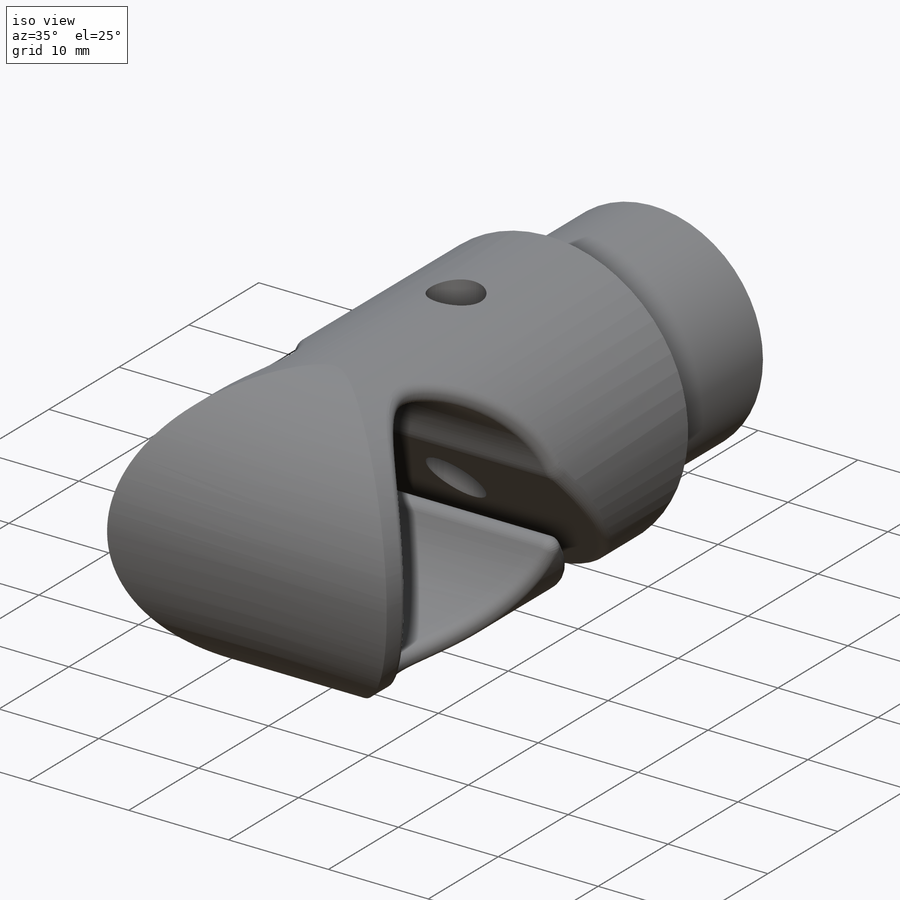
[diagram: iso view]
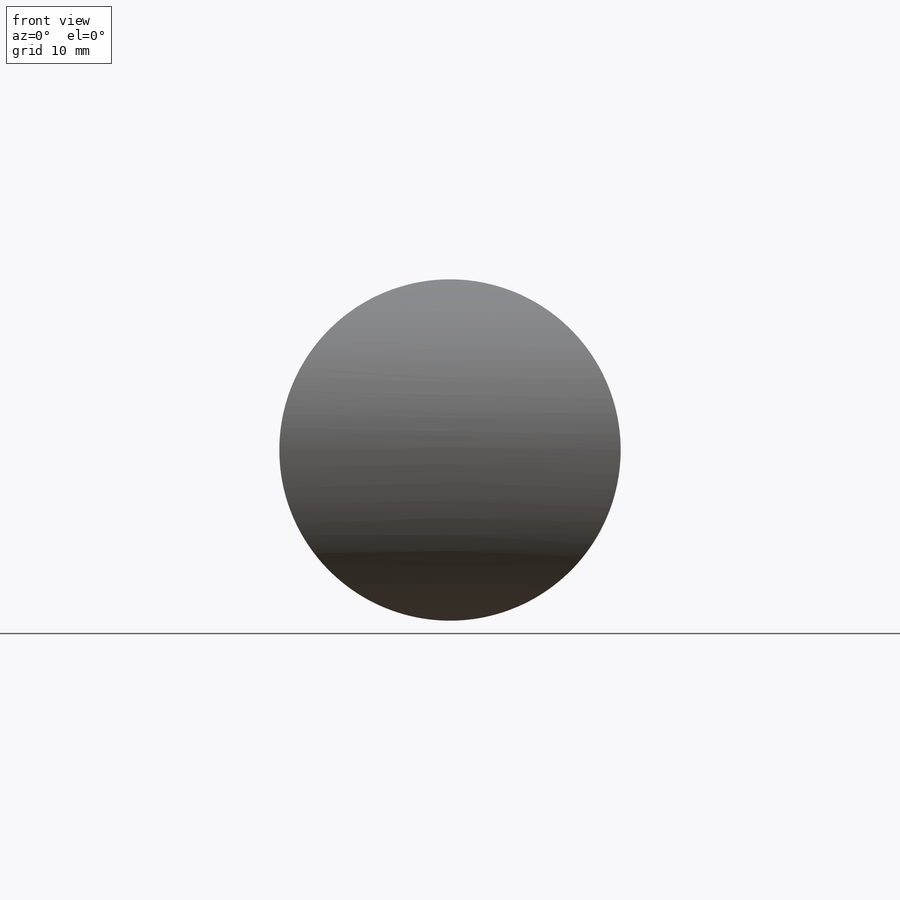
[diagram: front view]
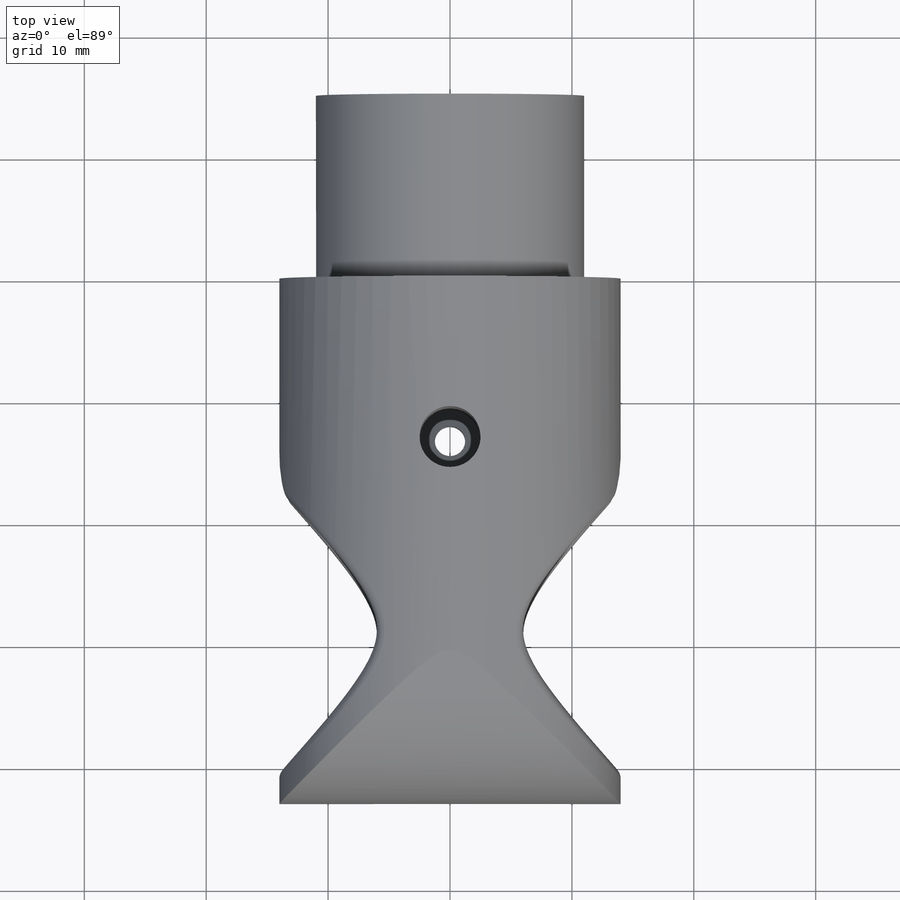
[diagram: top view]
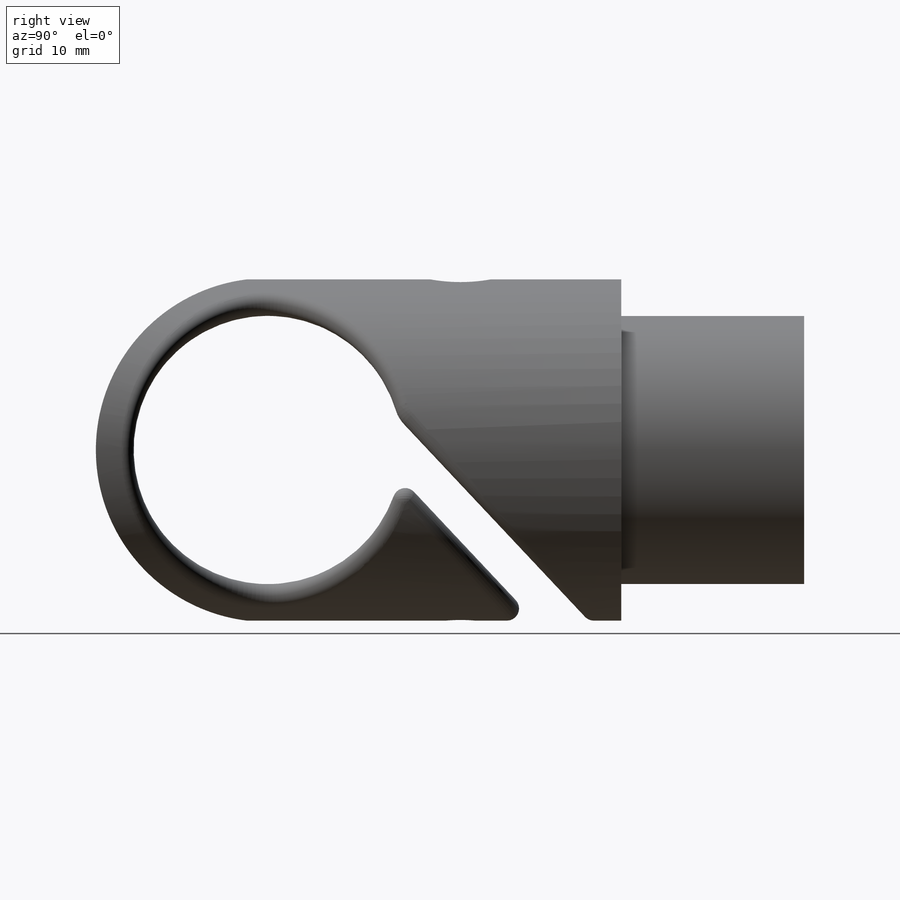
[diagram: right view]
SOLIDWORKS PART (.sldprt)
format: sldprt  version: not decoded by parser v0  size: 524,800 bytes
history: native  units: mm
features: sketch x9, material x6, cut_extrude x4, fillet x3, extrude x2, plane x1, hole x1, thread x1 (+8 scaffold rows collapsed)
feature tree (35):
  scaffold x8  (default folders/planes/origin — collapsed)
  material  "Материал <не указан>"
  material  "Сверху"
  material  "Справа"
  material  "Плоскость1"
  material  "Плоскость2"
  material  "Плоскость3"
  plane  "Спереди"
  sketch  "Эскиз1"  dims[D1=28.0mm]
  extrude  "Бобышка-Вытянуть1"  Depth=50mm
  sketch  "Эскиз2"  dims[D1=22.0mm D2=21.0mm]
  cut_extrude  "Вырез-Вытянуть1"  [1 undecoded]
  sketch  "Эскиз3"  dims[D1=3.2mm]
  cut_extrude  "Вырез-Вытянуть2"  [1 undecoded]
  sketch  "Эскиз4"
  hole  "Отверстие обработанное метчиком M3x0.51"  [1 undecoded]
  sketch  "Эскиз8"
  sketch  "Эскиз7"  dims[hole-wizard template sketch: 60 standard entries collapsed; hole parameters kept: c18.Глубина проходного сверла=~6.508607mm]
  thread  "Отверстие резьбы1"  Diameter=3mm  [1 undecoded]
  fillet  "Скругление1"  Radius=1mm
  fillet  "Скругление2"  Radius=3mm
  sketch  "Эскиз9"  dims[D1=28.2mm]
  cut_extrude  "Вырез-Вытянуть3"  [1 undecoded]
  sketch  "Эскиз10"  dims[D1=5.0mm]
  cut_extrude  "Вырез-Вытянуть4"  [1 undecoded]
  sketch  "Эскиз11"  dims[D1=22.0mm]
  extrude  "Бобышка-Вытянуть2"  Depth=15mm
  fillet  "Скругление3"  Radius=1mm
decode coverage: 13 of 20 modeling features carry decoded parameters
note: ~ marks probable driven/reference dimensions
note: 6 parameter values undecoded
summary: no parameter record found for 5 features
note: suppression state not decoded; provenance and decode notes live in map.json
